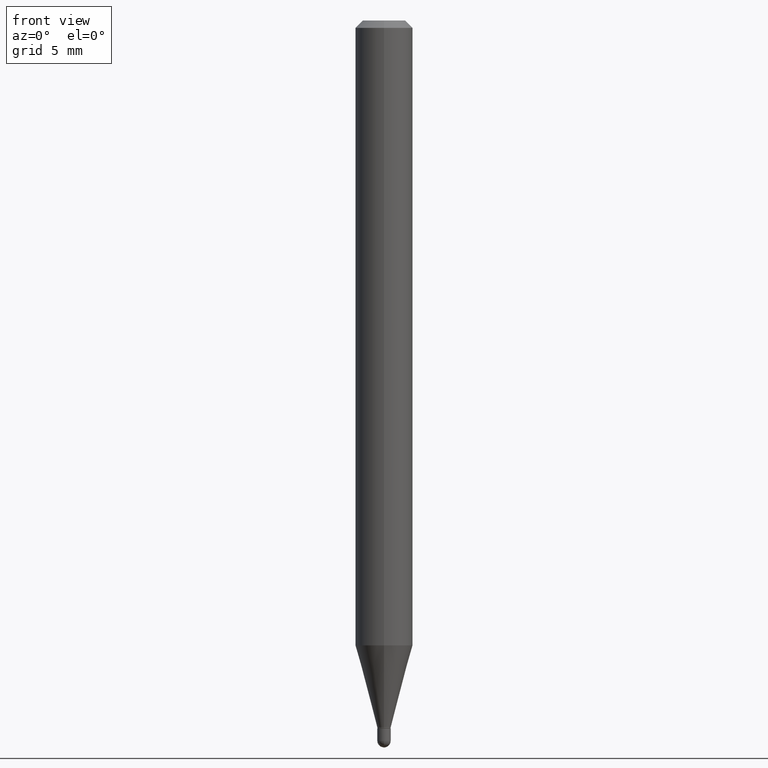
[diagram: clean part render]
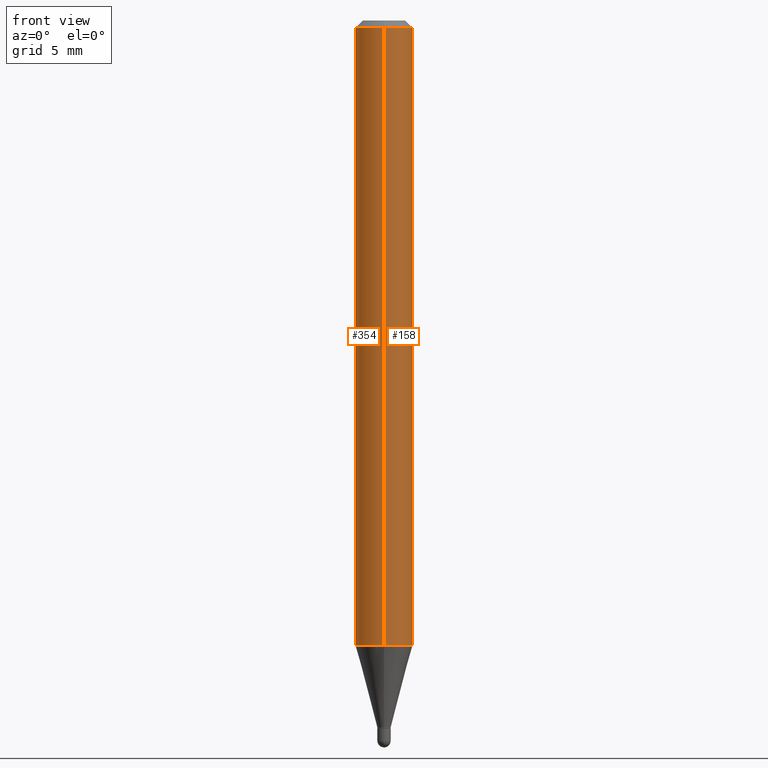
[diagram: same view with one multi-face feature highlighted, each face labeled with its STEP entity id]
A machine part, front view. The highlighted faces form ONE feature: a constant-radius fillet chain: 2 tangent blend faces with common blend radius 1.4999 mm. The faces share edges in the B-rep.
Their STEP definitions:
[1] entity #354 (Cylinder):
#19 = EDGE_CURVE ( 'NONE', #124, #453, #383, .T. ) ;
#24 = VERTEX_POINT ( 'NONE', #509 ) ;
#38 = DIRECTION ( 'NONE',  ( -2.445498150151118420E-29, 3.491439316613704829E-15, 1.000000000000000000 ) ) ;
#49 = EDGE_CURVE ( 'NONE', #124, #24, #89, .T. ) ;
#51 = DIRECTION ( 'NONE',  ( -2.445498150151118420E-29, 3.491439316613704829E-15, 1.000000000000000000 ) ) ;
#70 = EDGE_CURVE ( 'NONE', #453, #503, #303, .T. ) ;
#85 = CYLINDRICAL_SURFACE ( 'NONE', #374, 0.05904999999999999832 ) ;
#89 = CIRCLE ( 'NONE', #159, 0.05904999999999999832 ) ;
#122 = ORIENTED_EDGE ( 'NONE', *, *, #70, .F. ) ;
#124 = VERTEX_POINT ( 'NONE', #381 ) ;
#159 = AXIS2_PLACEMENT_3D ( 'NONE', #162, #340, #214 ) ;
#162 = CARTESIAN_POINT ( 'NONE',  ( 3.144726477425218544E-29, -4.489728059127768371E-15, -1.285924700957508993 ) ) ;
#163 = ORIENTED_EDGE ( 'NONE', *, *, #231, .T. ) ;
#175 = ORIENTED_EDGE ( 'NONE', *, *, #19, .F. ) ;
#179 = VECTOR ( 'NONE', #418, 39.37007874015748143 ) ;
#214 = DIRECTION ( 'NONE',  ( -6.982962677686265922E-15, -1.000000000000000000, 4.626330217890369336E-15 ) ) ;
#231 = EDGE_CURVE ( 'NONE', #24, #503, #425, .T. ) ;
#242 = CARTESIAN_POINT ( 'NONE',  ( 0.000000000000000000, 0.000000000000000000, 0.000000000000000000 ) ) ;
#243 = DIRECTION ( 'NONE',  ( -6.982962677686265922E-15, -1.000000000000000000, 3.505890868245046092E-15 ) ) ;
#246 = CARTESIAN_POINT ( 'NONE',  ( -4.123439461173736383E-16, -0.05905000000000005383, -0.01499999999999987454 ) ) ;
#268 = VECTOR ( 'NONE', #388, 39.37007874015748143 ) ;
#274 = CARTESIAN_POINT ( 'NONE',  ( 4.195754854663390985E-16, 0.05904999999999999832, -2.061694916460392588E-16 ) ) ;
#298 = EDGE_LOOP ( 'NONE', ( #175, #311, #163, #122 ) ) ;
#303 = CIRCLE ( 'NONE', #360, 0.05904999999999999832 ) ;
#311 = ORIENTED_EDGE ( 'NONE', *, *, #49, .T. ) ;
#328 = CARTESIAN_POINT ( 'NONE',  ( 3.668247225226697196E-31, -5.237158974920585691E-17, -0.01500000000000008098 ) ) ;
#340 = DIRECTION ( 'NONE',  ( -2.445498150151118420E-29, 3.491439316613704829E-15, 1.000000000000000000 ) ) ;
#354 = ADVANCED_FACE ( 'NONE', ( #468 ), #85, .T. ) ;
#360 = AXIS2_PLACEMENT_3D ( 'NONE', #328, #51, #243 ) ;
#373 = CARTESIAN_POINT ( 'NONE',  ( -4.123439461173739834E-16, -0.05904999999999999832, 2.061694916460392588E-16 ) ) ;
#374 = AXIS2_PLACEMENT_3D ( 'NONE', #242, #38, #396 ) ;
#381 = CARTESIAN_POINT ( 'NONE',  ( 4.195754854663704558E-16, 0.05904999999999550886, -1.285924700957509215 ) ) ;
#383 = LINE ( 'NONE', #274, #268 ) ;
#388 = DIRECTION ( 'NONE',  ( -2.445498150151118701E-29, 3.491439316613704434E-15, 1.000000000000000000 ) ) ;
#396 = DIRECTION ( 'NONE',  ( -6.982962677686265922E-15, -1.000000000000000000, 3.491439316613704829E-15 ) ) ;
#418 = DIRECTION ( 'NONE',  ( -2.445498150151118701E-29, 3.491439316613704434E-15, 1.000000000000000000 ) ) ;
#425 = LINE ( 'NONE', #373, #179 ) ;
#442 = CARTESIAN_POINT ( 'NONE',  ( 4.195754854663707516E-16, 0.05904999999999994975, -0.01500000000000028741 ) ) ;
#453 = VERTEX_POINT ( 'NONE', #442 ) ;
#468 = FACE_OUTER_BOUND ( 'NONE', #298, .T. ) ;
#503 = VERTEX_POINT ( 'NONE', #246 ) ;
#509 = CARTESIAN_POINT ( 'NONE',  ( -4.123439461173426262E-16, -0.05905000000000449473, -1.285924700957508771 ) ) ;
[2] entity #158 (Cylinder):
#4 = DIRECTION ( 'NONE',  ( -2.445498150151118420E-29, 3.491439316613704829E-15, 1.000000000000000000 ) ) ;
#19 = EDGE_CURVE ( 'NONE', #124, #453, #383, .T. ) ;
#24 = VERTEX_POINT ( 'NONE', #509 ) ;
#68 = AXIS2_PLACEMENT_3D ( 'NONE', #422, #253, #415 ) ;
#124 = VERTEX_POINT ( 'NONE', #381 ) ;
#145 = ORIENTED_EDGE ( 'NONE', *, *, #247, .T. ) ;
#147 = CYLINDRICAL_SURFACE ( 'NONE', #174, 0.05904999999999999832 ) ;
#158 = ADVANCED_FACE ( 'NONE', ( #459 ), #147, .T. ) ;
#174 = AXIS2_PLACEMENT_3D ( 'NONE', #189, #386, #259 ) ;
#179 = VECTOR ( 'NONE', #418, 39.37007874015748143 ) ;
#189 = CARTESIAN_POINT ( 'NONE',  ( 0.000000000000000000, 0.000000000000000000, 0.000000000000000000 ) ) ;
#231 = EDGE_CURVE ( 'NONE', #24, #503, #425, .T. ) ;
#246 = CARTESIAN_POINT ( 'NONE',  ( -4.123439461173736383E-16, -0.05905000000000005383, -0.01499999999999987454 ) ) ;
#247 = EDGE_CURVE ( 'NONE', #24, #124, #339, .T. ) ;
#253 = DIRECTION ( 'NONE',  ( -2.445498150151118420E-29, 3.491439316613704829E-15, 1.000000000000000000 ) ) ;
#259 = DIRECTION ( 'NONE',  ( -6.982962677686265922E-15, -1.000000000000000000, 3.491439316613704829E-15 ) ) ;
#268 = VECTOR ( 'NONE', #388, 39.37007874015748143 ) ;
#270 = EDGE_CURVE ( 'NONE', #503, #453, #487, .T. ) ;
#271 = ORIENTED_EDGE ( 'NONE', *, *, #19, .T. ) ;
#272 = CARTESIAN_POINT ( 'NONE',  ( 3.668247225226697196E-31, -5.237158974920585691E-17, -0.01500000000000008098 ) ) ;
#274 = CARTESIAN_POINT ( 'NONE',  ( 4.195754854663390985E-16, 0.05904999999999999832, -2.061694916460392588E-16 ) ) ;
#339 = CIRCLE ( 'NONE', #68, 0.05904999999999999832 ) ;
#358 = DIRECTION ( 'NONE',  ( -6.982962677686265922E-15, -1.000000000000000000, 3.505890868245046092E-15 ) ) ;
#372 = ORIENTED_EDGE ( 'NONE', *, *, #270, .F. ) ;
#373 = CARTESIAN_POINT ( 'NONE',  ( -4.123439461173739834E-16, -0.05904999999999999832, 2.061694916460392588E-16 ) ) ;
#381 = CARTESIAN_POINT ( 'NONE',  ( 4.195754854663704558E-16, 0.05904999999999550886, -1.285924700957509215 ) ) ;
#383 = LINE ( 'NONE', #274, #268 ) ;
#386 = DIRECTION ( 'NONE',  ( -2.445498150151118420E-29, 3.491439316613704829E-15, 1.000000000000000000 ) ) ;
#388 = DIRECTION ( 'NONE',  ( -2.445498150151118701E-29, 3.491439316613704434E-15, 1.000000000000000000 ) ) ;
#406 = AXIS2_PLACEMENT_3D ( 'NONE', #272, #4, #358 ) ;
#415 = DIRECTION ( 'NONE',  ( -6.982962677686265922E-15, -1.000000000000000000, 4.626330217890369336E-15 ) ) ;
#418 = DIRECTION ( 'NONE',  ( -2.445498150151118701E-29, 3.491439316613704434E-15, 1.000000000000000000 ) ) ;
#422 = CARTESIAN_POINT ( 'NONE',  ( 3.144726477425218544E-29, -4.489728059127768371E-15, -1.285924700957508993 ) ) ;
#425 = LINE ( 'NONE', #373, #179 ) ;
#442 = CARTESIAN_POINT ( 'NONE',  ( 4.195754854663707516E-16, 0.05904999999999994975, -0.01500000000000028741 ) ) ;
#453 = VERTEX_POINT ( 'NONE', #442 ) ;
#459 = FACE_OUTER_BOUND ( 'NONE', #510, .T. ) ;
#487 = CIRCLE ( 'NONE', #406, 0.05904999999999999832 ) ;
#499 = ORIENTED_EDGE ( 'NONE', *, *, #231, .F. ) ;
#503 = VERTEX_POINT ( 'NONE', #246 ) ;
#509 = CARTESIAN_POINT ( 'NONE',  ( -4.123439461173426262E-16, -0.05905000000000449473, -1.285924700957508771 ) ) ;
#510 = EDGE_LOOP ( 'NONE', ( #145, #271, #372, #499 ) ) ;